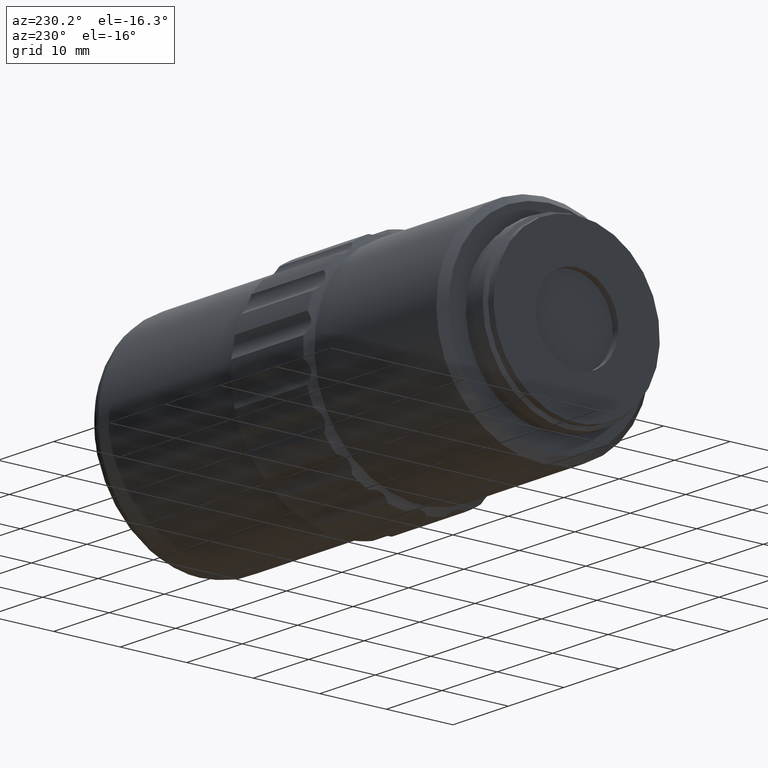
[diagram: clean part render]
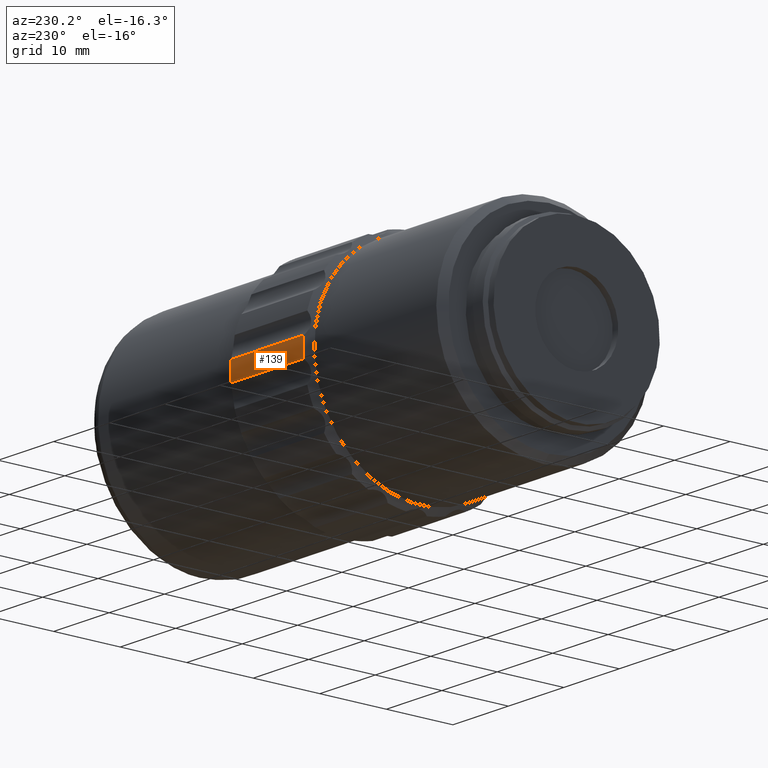
[diagram: same view with one face highlighted and labeled with its STEP entity id]
A machine part, auxiliary view. The second image highlights one B-rep face of the part: STEP entity #139.
In plain terms, the highlighted cylindrical surface (partial cylindrical patch) has radius 17 mm, axis along (-1, 0, 0).
Its self-contained STEP definition (entity closure, byte-faithful):
#75 = VECTOR ( 'NONE', #987, 1000.000000000000000 ) ;
#80 = CIRCLE ( 'NONE', #351, 17.00000000000000000 ) ;
#139 = ADVANCED_FACE ( 'NONE', ( #1972 ), #1482, .T. ) ;
#186 = VERTEX_POINT ( 'NONE', #1147 ) ;
#336 = DIRECTION ( 'NONE',  ( -1.000000000000000000, 0.000000000000000000, 0.000000000000000000 ) ) ;
#351 = AXIS2_PLACEMENT_3D ( 'NONE', #1623, #1258, #1926 ) ;
#362 = EDGE_CURVE ( 'NONE', #572, #901, #80, .T. ) ;
#370 = CARTESIAN_POINT ( 'NONE',  ( 32.44685803487877251, 62.96184413496547450, 1.416514203673303385 ) ) ;
#419 = VECTOR ( 'NONE', #1500, 1000.000000000000000 ) ;
#453 = EDGE_CURVE ( 'NONE', #901, #186, #828, .T. ) ;
#572 = VERTEX_POINT ( 'NONE', #370 ) ;
#583 = EDGE_CURVE ( 'NONE', #1625, #186, #835, .T. ) ;
#679 = CARTESIAN_POINT ( 'NONE',  ( 25.94685803487879738, 46.02096199999999726, 0.000000000000000000 ) ) ;
#707 = CARTESIAN_POINT ( 'NONE',  ( 19.34685803487879596, 46.02096199999999726, 0.000000000000000000 ) ) ;
#828 = LINE ( 'NONE', #1324, #419 ) ;
#835 = CIRCLE ( 'NONE', #2056, 17.00000000000000000 ) ;
#901 = VERTEX_POINT ( 'NONE', #1675 ) ;
#924 = ORIENTED_EDGE ( 'NONE', *, *, #583, .F. ) ;
#956 = EDGE_LOOP ( 'NONE', ( #1929, #924, #1294, #1404 ) ) ;
#987 = DIRECTION ( 'NONE',  ( 1.000000000000000000, -0.000000000000000000, -0.000000000000000000 ) ) ;
#998 = CARTESIAN_POINT ( 'NONE',  ( 53.58686043487880823, 62.96184413496550292, 1.416514203673275185 ) ) ;
#1009 = LINE ( 'NONE', #998, #75 ) ;
#1147 = CARTESIAN_POINT ( 'NONE',  ( 19.34685803487881728, 62.96184413496547450, -1.416514203673302941 ) ) ;
#1155 = AXIS2_PLACEMENT_3D ( 'NONE', #679, #336, #1829 ) ;
#1258 = DIRECTION ( 'NONE',  ( -1.000000000000000000, 0.000000000000000000, 0.000000000000000000 ) ) ;
#1294 = ORIENTED_EDGE ( 'NONE', *, *, #1901, .T. ) ;
#1324 = CARTESIAN_POINT ( 'NONE',  ( 53.58686043487880823, 62.96184413496550292, -1.416514203673273853 ) ) ;
#1369 = DIRECTION ( 'NONE',  ( -1.000000000000000000, -0.000000000000000000, -0.000000000000000000 ) ) ;
#1399 = CARTESIAN_POINT ( 'NONE',  ( 19.34685803487881017, 62.96184413496550292, 1.416514203673278960 ) ) ;
#1404 = ORIENTED_EDGE ( 'NONE', *, *, #362, .T. ) ;
#1482 = CYLINDRICAL_SURFACE ( 'NONE', #1155, 17.00000000000000000 ) ;
#1500 = DIRECTION ( 'NONE',  ( -1.000000000000000000, 0.000000000000000000, 0.000000000000000000 ) ) ;
#1623 = CARTESIAN_POINT ( 'NONE',  ( 32.44685803487880094, 46.02096199999999726, 0.000000000000000000 ) ) ;
#1625 = VERTEX_POINT ( 'NONE', #1399 ) ;
#1675 = CARTESIAN_POINT ( 'NONE',  ( 32.44685803487877251, 62.96184413496547450, -1.416514203673302941 ) ) ;
#1829 = DIRECTION ( 'NONE',  ( 0.000000000000000000, 0.000000000000000000, 1.000000000000000000 ) ) ;
#1887 = DIRECTION ( 'NONE',  ( 0.000000000000000000, -1.000000000000000000, -8.881784197001252323E-15 ) ) ;
#1901 = EDGE_CURVE ( 'NONE', #1625, #572, #1009, .T. ) ;
#1926 = DIRECTION ( 'NONE',  ( 0.000000000000000000, 0.000000000000000000, 1.000000000000000000 ) ) ;
#1929 = ORIENTED_EDGE ( 'NONE', *, *, #453, .T. ) ;
#1972 = FACE_OUTER_BOUND ( 'NONE', #956, .T. ) ;
#2056 = AXIS2_PLACEMENT_3D ( 'NONE', #707, #1369, #1887 ) ;